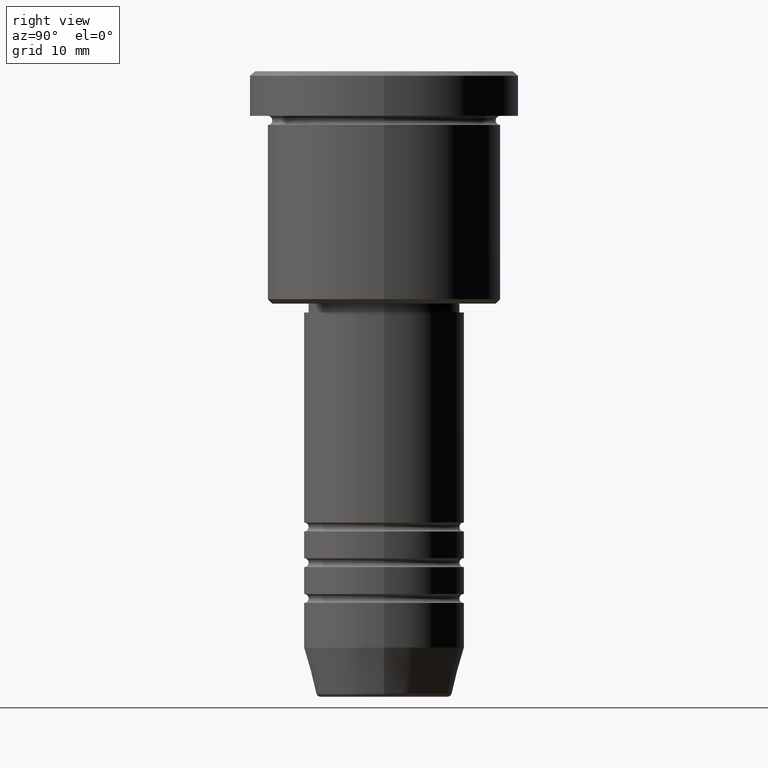
[diagram: clean part render]
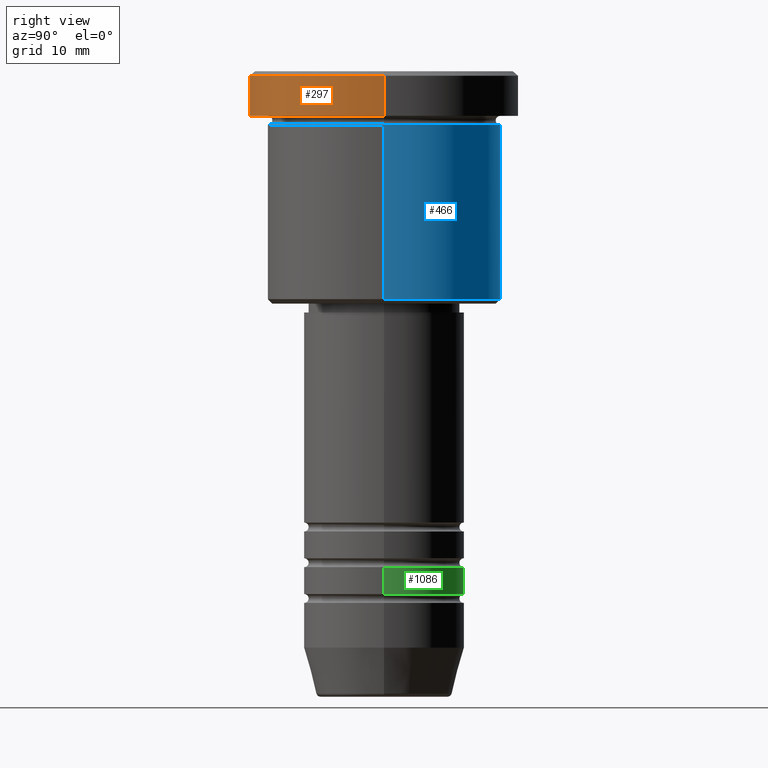
[diagram: same view with three faces highlighted in distinct colors, each labeled with its STEP entity id]
A machine part, right view with three faces highlighted in distinct colors.
Their STEP definitions:

[orange] entity #297 — the highlighted cylindrical surface (partial cylindrical patch) has radius 15 mm, axis along (-0, -0, 1).
#4 = LINE ( 'NONE', #272, #344 ) ;
#82 = EDGE_CURVE ( 'NONE', #142, #544, #471, .T. ) ;
#101 = DIRECTION ( 'NONE',  ( -0.000000000000000000, -0.000000000000000000, 1.000000000000000000 ) ) ;
#120 = DIRECTION ( 'NONE',  ( 1.000000000000000000, 0.000000000000000000, 0.000000000000000000 ) ) ;
#142 = VERTEX_POINT ( 'NONE', #738 ) ;
#265 = CARTESIAN_POINT ( 'NONE',  ( 15.00000000000000000, 0.000000000000000000, 0.000000000000000000 ) ) ;
#272 = CARTESIAN_POINT ( 'NONE',  ( -15.00000000000000000, 1.836970198721029589E-15, 0.000000000000000000 ) ) ;
#277 = VERTEX_POINT ( 'NONE', #576 ) ;
#288 = ORIENTED_EDGE ( 'NONE', *, *, #348, .T. ) ;
#297 = ADVANCED_FACE ( 'NONE', ( #563 ), #485, .T. ) ;
#332 = VERTEX_POINT ( 'NONE', #882 ) ;
#344 = VECTOR ( 'NONE', #358, 1000.000000000000000 ) ;
#348 = EDGE_CURVE ( 'NONE', #544, #332, #554, .T. ) ;
#358 = DIRECTION ( 'NONE',  ( -0.000000000000000000, -0.000000000000000000, 1.000000000000000000 ) ) ;
#367 = CARTESIAN_POINT ( 'NONE',  ( 0.000000000000000000, 0.000000000000000000, -4.999999999999999112 ) ) ;
#391 = VECTOR ( 'NONE', #101, 1000.000000000000000 ) ;
#410 = AXIS2_PLACEMENT_3D ( 'NONE', #367, #1180, #890 ) ;
#450 = EDGE_CURVE ( 'NONE', #142, #277, #4, .T. ) ;
#453 = ORIENTED_EDGE ( 'NONE', *, *, #82, .T. ) ;
#471 = CIRCLE ( 'NONE', #410, 15.00000000000000000 ) ;
#485 = CYLINDRICAL_SURFACE ( 'NONE', #490, 15.00000000000000000 ) ;
#490 = AXIS2_PLACEMENT_3D ( 'NONE', #933, #1045, #120 ) ;
#500 = CARTESIAN_POINT ( 'NONE',  ( 0.000000000000000000, 0.000000000000000000, -0.4999999999999900080 ) ) ;
#531 = AXIS2_PLACEMENT_3D ( 'NONE', #500, #752, #1123 ) ;
#537 = ORIENTED_EDGE ( 'NONE', *, *, #916, .T. ) ;
#544 = VERTEX_POINT ( 'NONE', #714 ) ;
#554 = LINE ( 'NONE', #265, #391 ) ;
#563 = FACE_OUTER_BOUND ( 'NONE', #1153, .T. ) ;
#576 = CARTESIAN_POINT ( 'NONE',  ( -15.00000000000000000, 1.836970198721029589E-15, -0.4999999999999900080 ) ) ;
#625 = ORIENTED_EDGE ( 'NONE', *, *, #450, .F. ) ;
#714 = CARTESIAN_POINT ( 'NONE',  ( 15.00000000000000000, 0.000000000000000000, -4.999999999999999112 ) ) ;
#738 = CARTESIAN_POINT ( 'NONE',  ( -15.00000000000000000, 1.836970198721029589E-15, -4.999999999999999112 ) ) ;
#752 = DIRECTION ( 'NONE',  ( 0.000000000000000000, 0.000000000000000000, -1.000000000000000000 ) ) ;
#761 = CIRCLE ( 'NONE', #531, 15.00000000000000000 ) ;
#882 = CARTESIAN_POINT ( 'NONE',  ( 15.00000000000000000, 0.000000000000000000, -0.4999999999999900080 ) ) ;
#890 = DIRECTION ( 'NONE',  ( 1.000000000000000000, 0.000000000000000000, 0.000000000000000000 ) ) ;
#916 = EDGE_CURVE ( 'NONE', #332, #277, #761, .T. ) ;
#933 = CARTESIAN_POINT ( 'NONE',  ( 0.000000000000000000, 0.000000000000000000, 0.000000000000000000 ) ) ;
#1045 = DIRECTION ( 'NONE',  ( -0.000000000000000000, -0.000000000000000000, 1.000000000000000000 ) ) ;
#1123 = DIRECTION ( 'NONE',  ( 1.000000000000000000, 0.000000000000000000, 0.000000000000000000 ) ) ;
#1153 = EDGE_LOOP ( 'NONE', ( #625, #453, #288, #537 ) ) ;
#1180 = DIRECTION ( 'NONE',  ( -0.000000000000000000, -0.000000000000000000, 1.000000000000000000 ) ) ;

[blue] entity #466 — the highlighted cylindrical surface (partial cylindrical patch) has radius 13 mm, axis along (-0, -0, 1).
#58 = ORIENTED_EDGE ( 'NONE', *, *, #432, .F. ) ;
#94 = DIRECTION ( 'NONE',  ( 1.000000000000000000, 0.000000000000000000, 0.000000000000000000 ) ) ;
#131 = AXIS2_PLACEMENT_3D ( 'NONE', #621, #167, #94 ) ;
#155 = AXIS2_PLACEMENT_3D ( 'NONE', #1164, #622, #969 ) ;
#167 = DIRECTION ( 'NONE',  ( -0.000000000000000000, -0.000000000000000000, 1.000000000000000000 ) ) ;
#191 = EDGE_CURVE ( 'NONE', #428, #785, #430, .T. ) ;
#257 = CYLINDRICAL_SURFACE ( 'NONE', #131, 13.00000000000000178 ) ;
#310 = VERTEX_POINT ( 'NONE', #662 ) ;
#324 = ORIENTED_EDGE ( 'NONE', *, *, #1114, .T. ) ;
#342 = CARTESIAN_POINT ( 'NONE',  ( 13.00000000000000178, 0.000000000000000000, -25.49999999999999289 ) ) ;
#361 = ORIENTED_EDGE ( 'NONE', *, *, #660, .T. ) ;
#428 = VERTEX_POINT ( 'NONE', #627 ) ;
#430 = CIRCLE ( 'NONE', #1116, 13.00000000000000178 ) ;
#432 = EDGE_CURVE ( 'NONE', #1109, #428, #458, .T. ) ;
#458 = LINE ( 'NONE', #539, #935 ) ;
#466 = ADVANCED_FACE ( 'NONE', ( #1089 ), #257, .T. ) ;
#509 = EDGE_LOOP ( 'NONE', ( #361, #324, #941, #58 ) ) ;
#539 = CARTESIAN_POINT ( 'NONE',  ( 13.00000000000000178, 0.000000000000000000, 0.000000000000000000 ) ) ;
#621 = CARTESIAN_POINT ( 'NONE',  ( 0.000000000000000000, 0.000000000000000000, 0.000000000000000000 ) ) ;
#622 = DIRECTION ( 'NONE',  ( -0.000000000000000000, -0.000000000000000000, 1.000000000000000000 ) ) ;
#627 = CARTESIAN_POINT ( 'NONE',  ( 13.00000000000000178, 0.000000000000000000, -5.999999999999999112 ) ) ;
#660 = EDGE_CURVE ( 'NONE', #1109, #310, #1154, .T. ) ;
#662 = CARTESIAN_POINT ( 'NONE',  ( -13.00000000000000178, 1.592040838891559293E-15, -25.49999999999999289 ) ) ;
#680 = DIRECTION ( 'NONE',  ( 1.000000000000000000, 0.000000000000000000, 0.000000000000000000 ) ) ;
#703 = CARTESIAN_POINT ( 'NONE',  ( -13.00000000000000178, 1.592040838891559293E-15, 0.000000000000000000 ) ) ;
#785 = VERTEX_POINT ( 'NONE', #844 ) ;
#844 = CARTESIAN_POINT ( 'NONE',  ( -13.00000000000000178, 1.592040838891559293E-15, -5.999999999999999112 ) ) ;
#869 = LINE ( 'NONE', #703, #978 ) ;
#894 = DIRECTION ( 'NONE',  ( -0.000000000000000000, -0.000000000000000000, 1.000000000000000000 ) ) ;
#935 = VECTOR ( 'NONE', #894, 1000.000000000000000 ) ;
#941 = ORIENTED_EDGE ( 'NONE', *, *, #191, .F. ) ;
#959 = CARTESIAN_POINT ( 'NONE',  ( 0.000000000000000000, 0.000000000000000000, -5.999999999999999112 ) ) ;
#964 = DIRECTION ( 'NONE',  ( -0.000000000000000000, -0.000000000000000000, 1.000000000000000000 ) ) ;
#969 = DIRECTION ( 'NONE',  ( -1.000000000000000000, 0.000000000000000000, 0.000000000000000000 ) ) ;
#978 = VECTOR ( 'NONE', #1081, 1000.000000000000000 ) ;
#1081 = DIRECTION ( 'NONE',  ( -0.000000000000000000, -0.000000000000000000, 1.000000000000000000 ) ) ;
#1089 = FACE_OUTER_BOUND ( 'NONE', #509, .T. ) ;
#1109 = VERTEX_POINT ( 'NONE', #342 ) ;
#1114 = EDGE_CURVE ( 'NONE', #310, #785, #869, .T. ) ;
#1116 = AXIS2_PLACEMENT_3D ( 'NONE', #959, #964, #680 ) ;
#1154 = CIRCLE ( 'NONE', #155, 13.00000000000000178 ) ;
#1164 = CARTESIAN_POINT ( 'NONE',  ( 0.000000000000000000, 0.000000000000000000, -25.49999999999999289 ) ) ;

[green] entity #1086 — the highlighted cylindrical surface (partial cylindrical patch) has radius 9 mm, axis along (-0, -0, 1).
#40 = CARTESIAN_POINT ( 'NONE',  ( 0.000000000000000000, 0.000000000000000000, 0.000000000000000000 ) ) ;
#77 = VERTEX_POINT ( 'NONE', #184 ) ;
#78 = CARTESIAN_POINT ( 'NONE',  ( 0.000000000000000000, 0.000000000000000000, -58.49999999999999289 ) ) ;
#95 = DIRECTION ( 'NONE',  ( -0.000000000000000000, -0.000000000000000000, 1.000000000000000000 ) ) ;
#122 = ORIENTED_EDGE ( 'NONE', *, *, #331, .T. ) ;
#127 = LINE ( 'NONE', #757, #725 ) ;
#145 = ORIENTED_EDGE ( 'NONE', *, *, #808, .F. ) ;
#184 = CARTESIAN_POINT ( 'NONE',  ( 9.000000000000001776, 0.000000000000000000, -58.49999999999999289 ) ) ;
#248 = CIRCLE ( 'NONE', #1038, 9.000000000000001776 ) ;
#279 = DIRECTION ( 'NONE',  ( -0.000000000000000000, -0.000000000000000000, 1.000000000000000000 ) ) ;
#280 = LINE ( 'NONE', #524, #855 ) ;
#331 = EDGE_CURVE ( 'NONE', #77, #908, #248, .T. ) ;
#335 = EDGE_CURVE ( 'NONE', #727, #522, #507, .T. ) ;
#369 = ORIENTED_EDGE ( 'NONE', *, *, #405, .T. ) ;
#405 = EDGE_CURVE ( 'NONE', #908, #522, #280, .T. ) ;
#412 = DIRECTION ( 'NONE',  ( 1.000000000000000000, 0.000000000000000000, 0.000000000000000000 ) ) ;
#419 = DIRECTION ( 'NONE',  ( 1.000000000000000000, 0.000000000000000000, 0.000000000000000000 ) ) ;
#426 = CARTESIAN_POINT ( 'NONE',  ( -9.000000000000000000, 1.102182119232617714E-15, -55.49999999999999289 ) ) ;
#478 = DIRECTION ( 'NONE',  ( -0.000000000000000000, -0.000000000000000000, 1.000000000000000000 ) ) ;
#507 = CIRCLE ( 'NONE', #1177, 9.000000000000000000 ) ;
#522 = VERTEX_POINT ( 'NONE', #426 ) ;
#524 = CARTESIAN_POINT ( 'NONE',  ( -9.000000000000001776, 1.102182119232617911E-15, 0.000000000000000000 ) ) ;
#555 = CARTESIAN_POINT ( 'NONE',  ( 9.000000000000000000, 0.000000000000000000, -55.49999999999999289 ) ) ;
#600 = CYLINDRICAL_SURFACE ( 'NONE', #827, 9.000000000000001776 ) ;
#637 = ORIENTED_EDGE ( 'NONE', *, *, #335, .F. ) ;
#675 = EDGE_LOOP ( 'NONE', ( #122, #369, #637, #145 ) ) ;
#722 = DIRECTION ( 'NONE',  ( 1.000000000000000000, 0.000000000000000000, 0.000000000000000000 ) ) ;
#725 = VECTOR ( 'NONE', #478, 1000.000000000000000 ) ;
#727 = VERTEX_POINT ( 'NONE', #555 ) ;
#757 = CARTESIAN_POINT ( 'NONE',  ( 9.000000000000001776, 0.000000000000000000, 0.000000000000000000 ) ) ;
#767 = DIRECTION ( 'NONE',  ( -0.000000000000000000, -0.000000000000000000, 1.000000000000000000 ) ) ;
#808 = EDGE_CURVE ( 'NONE', #77, #727, #127, .T. ) ;
#827 = AXIS2_PLACEMENT_3D ( 'NONE', #40, #857, #419 ) ;
#855 = VECTOR ( 'NONE', #279, 1000.000000000000000 ) ;
#857 = DIRECTION ( 'NONE',  ( -0.000000000000000000, -0.000000000000000000, 1.000000000000000000 ) ) ;
#868 = FACE_OUTER_BOUND ( 'NONE', #675, .T. ) ;
#908 = VERTEX_POINT ( 'NONE', #961 ) ;
#956 = CARTESIAN_POINT ( 'NONE',  ( 0.000000000000000000, 0.000000000000000000, -55.49999999999999289 ) ) ;
#961 = CARTESIAN_POINT ( 'NONE',  ( -9.000000000000001776, 1.102182119232617911E-15, -58.49999999999999289 ) ) ;
#1038 = AXIS2_PLACEMENT_3D ( 'NONE', #78, #767, #412 ) ;
#1086 = ADVANCED_FACE ( 'NONE', ( #868 ), #600, .T. ) ;
#1177 = AXIS2_PLACEMENT_3D ( 'NONE', #956, #95, #722 ) ;